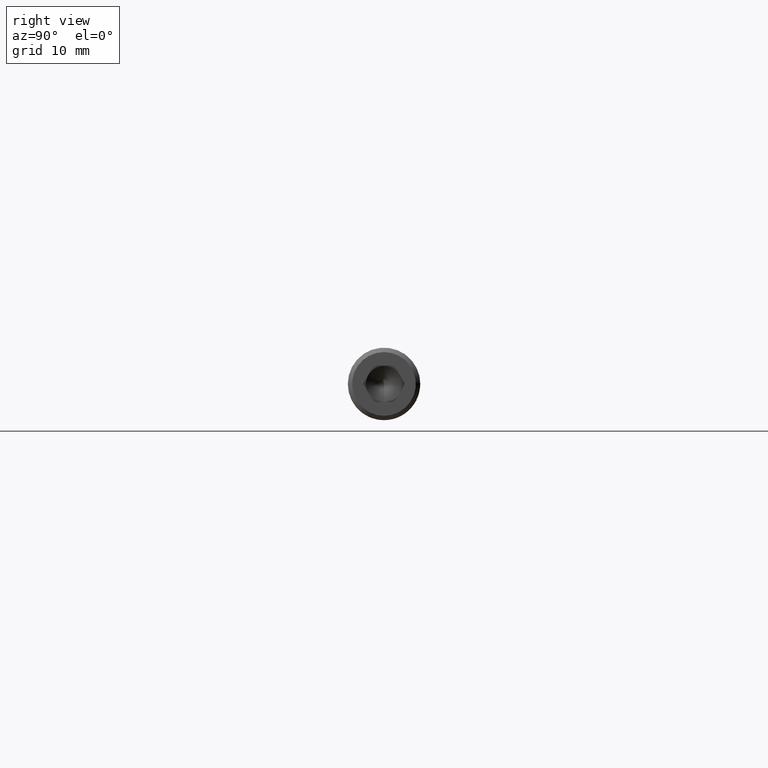
[diagram: clean part render]
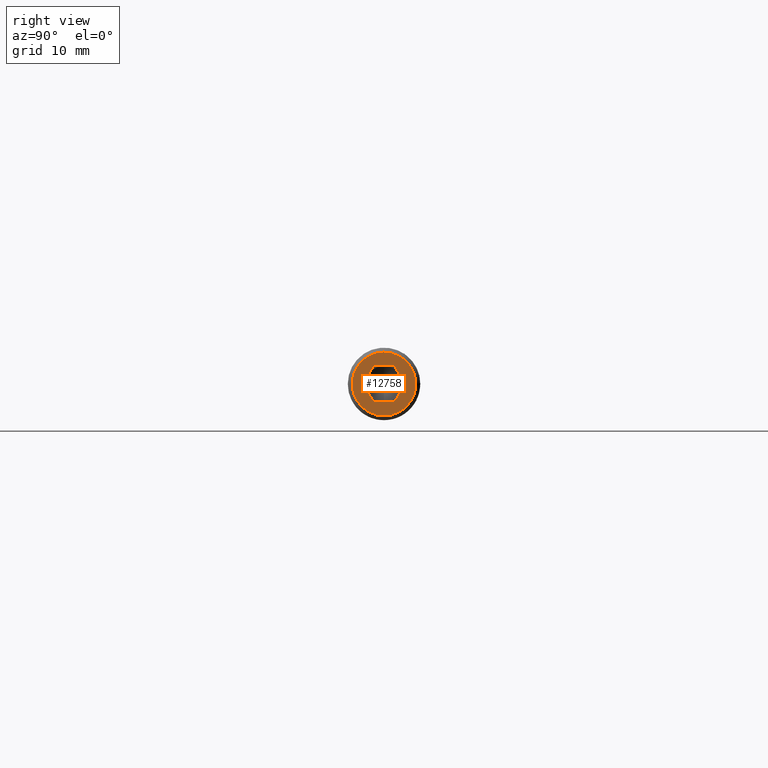
[diagram: same view with one face highlighted and labeled with its STEP entity id]
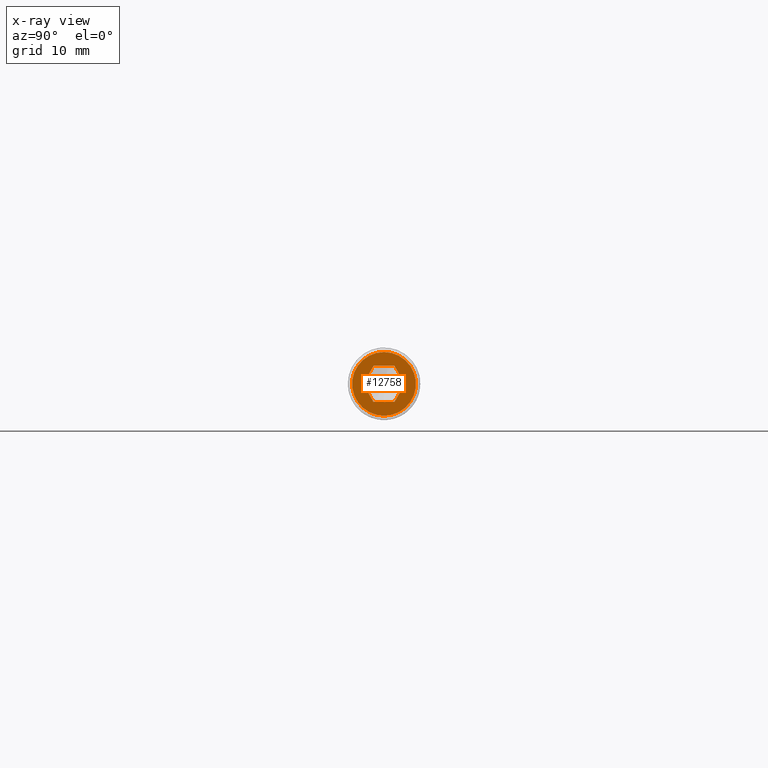
[diagram: x-ray of the same camera — body ghosted, the highlighted face saturated]
A machine part, right view. The second image highlights one B-rep face of the part: STEP entity #12758.
The next image is the same camera in x-ray: the body ghosted, the highlighted face saturated — about 0% of this face is hidden behind the body in this view.
In plain terms, the highlighted planar face has unit normal (1, 0, 0).
Its self-contained STEP definition (entity closure, byte-faithful):
#14 = ORIENTED_EDGE ( 'NONE', *, *, #9530, .F. ) ;
#299 = CARTESIAN_POINT ( 'NONE',  ( 100.0000000000000000, 2.886751345948125100, -6.345340530042170500E-016 ) ) ;
#1620 = VERTEX_POINT ( 'NONE', #7091 ) ;
#1689 = CARTESIAN_POINT ( 'NONE',  ( 100.0000000000000000, -1.443375672974068500, 2.500000000000000400 ) ) ;
#1742 = VERTEX_POINT ( 'NONE', #14264 ) ;
#1823 = CARTESIAN_POINT ( 'NONE',  ( 100.0000000000000000, -2.886751345948133500, -4.766870681724039000E-018 ) ) ;
#1846 = VERTEX_POINT ( 'NONE', #15651 ) ;
#1944 = LINE ( 'NONE', #13593, #11686 ) ;
#2323 = ORIENTED_EDGE ( 'NONE', *, *, #5334, .F. ) ;
#2417 = FACE_OUTER_BOUND ( 'NONE', #17806, .T. ) ;
#2558 = PLANE ( 'NONE',  #16360 ) ;
#2569 = EDGE_CURVE ( 'NONE', #3542, #1742, #5134, .T. ) ;
#2818 = CARTESIAN_POINT ( 'NONE',  ( 100.0000000000000000, 1.443375672974060800, 2.500000000000000400 ) ) ;
#3155 = DIRECTION ( 'NONE',  ( 0.0000000000000000000, 0.4999999999999997200, -0.8660254037844388200 ) ) ;
#3542 = VERTEX_POINT ( 'NONE', #299 ) ;
#3554 = LINE ( 'NONE', #13138, #9598 ) ;
#4256 = CARTESIAN_POINT ( 'NONE',  ( 100.0000000000000000, 2.886751345948125100, -6.345340530042170500E-016 ) ) ;
#4996 = FACE_BOUND ( 'NONE', #9342, .T. ) ;
#5086 = VECTOR ( 'NONE', #7654, 1000.000000000000000 ) ;
#5134 = LINE ( 'NONE', #4256, #8369 ) ;
#5238 = DIRECTION ( 'NONE',  ( 0.0000000000000000000, -1.000000000000000000, 0.0000000000000000000 ) ) ;
#5334 = EDGE_CURVE ( 'NONE', #1742, #7187, #14456, .T. ) ;
#5452 = ORIENTED_EDGE ( 'NONE', *, *, #11935, .T. ) ;
#5753 = VECTOR ( 'NONE', #5238, 1000.000000000000000 ) ;
#6788 = ORIENTED_EDGE ( 'NONE', *, *, #14429, .F. ) ;
#7091 = CARTESIAN_POINT ( 'NONE',  ( 100.0000000000000000, 1.443375672974062100, -2.499999999999999600 ) ) ;
#7187 = VERTEX_POINT ( 'NONE', #1689 ) ;
#7231 = EDGE_CURVE ( 'NONE', #7187, #8072, #3554, .T. ) ;
#7654 = DIRECTION ( 'NONE',  ( 0.0000000000000000000, 0.4999999999999997200, 0.8660254037844388200 ) ) ;
#7988 = DIRECTION ( 'NONE',  ( 0.0000000000000000000, 1.000000000000000000, -1.502314598737157300E-016 ) ) ;
#8072 = VERTEX_POINT ( 'NONE', #13471 ) ;
#8369 = VECTOR ( 'NONE', #12508, 1000.000000000000100 ) ;
#8450 = ORIENTED_EDGE ( 'NONE', *, *, #7231, .F. ) ;
#8769 = LINE ( 'NONE', #14348, #5086 ) ;
#8940 = DIRECTION ( 'NONE',  ( 0.0000000000000000000, -0.5000000000000001100, -0.8660254037844384900 ) ) ;
#9342 = EDGE_LOOP ( 'NONE', ( #8450, #2323, #9970, #11864, #6788, #14 ) ) ;
#9530 = EDGE_CURVE ( 'NONE', #8072, #11280, #15717, .T. ) ;
#9598 = VECTOR ( 'NONE', #8940, 1000.000000000000200 ) ;
#9970 = ORIENTED_EDGE ( 'NONE', *, *, #2569, .F. ) ;
#10779 = DIRECTION ( 'NONE',  ( 0.0000000000000000000, 0.0000000000000000000, -1.000000000000000000 ) ) ;
#11280 = VERTEX_POINT ( 'NONE', #13951 ) ;
#11686 = VECTOR ( 'NONE', #7988, 1000.000000000000000 ) ;
#11864 = ORIENTED_EDGE ( 'NONE', *, *, #16117, .F. ) ;
#11935 = EDGE_CURVE ( 'NONE', #1846, #1846, #12382, .T. ) ;
#12299 = CARTESIAN_POINT ( 'NONE',  ( 100.0000000000000000, 0.0000000000000000000, 0.0000000000000000000 ) ) ;
#12382 = CIRCLE ( 'NONE', #17403, 4.399999999999996800 ) ;
#12393 = CARTESIAN_POINT ( 'NONE',  ( 100.0000000000000000, 0.0000000000000000000, 0.0000000000000000000 ) ) ;
#12508 = DIRECTION ( 'NONE',  ( 0.0000000000000000000, -0.4999999999999997800, 0.8660254037844387100 ) ) ;
#12758 = ADVANCED_FACE ( 'NONE', ( #4996, #2417 ), #2558, .T. ) ;
#13138 = CARTESIAN_POINT ( 'NONE',  ( 100.0000000000000000, -1.443375672974068500, 2.500000000000000400 ) ) ;
#13471 = CARTESIAN_POINT ( 'NONE',  ( 100.0000000000000000, -2.886751345948133500, -2.168404344971008900E-016 ) ) ;
#13593 = CARTESIAN_POINT ( 'NONE',  ( 100.0000000000000000, -1.443375672974070800, -2.499999999999999100 ) ) ;
#13870 = DIRECTION ( 'NONE',  ( 1.000000000000000000, 0.0000000000000000000, 0.0000000000000000000 ) ) ;
#13951 = CARTESIAN_POINT ( 'NONE',  ( 100.0000000000000000, -1.443375672974070800, -2.499999999999999100 ) ) ;
#14264 = CARTESIAN_POINT ( 'NONE',  ( 100.0000000000000000, 1.443375672974060800, 2.500000000000000400 ) ) ;
#14348 = CARTESIAN_POINT ( 'NONE',  ( 100.0000000000000000, 1.443375672974062100, -2.499999999999999600 ) ) ;
#14429 = EDGE_CURVE ( 'NONE', #11280, #1620, #1944, .T. ) ;
#14456 = LINE ( 'NONE', #2818, #5753 ) ;
#15263 = DIRECTION ( 'NONE',  ( 0.0000000000000000000, 0.0000000000000000000, -1.000000000000000000 ) ) ;
#15270 = VECTOR ( 'NONE', #3155, 1000.000000000000000 ) ;
#15651 = CARTESIAN_POINT ( 'NONE',  ( 100.0000000000000000, 0.0000000000000000000, -4.399999999999996800 ) ) ;
#15717 = LINE ( 'NONE', #1823, #15270 ) ;
#16117 = EDGE_CURVE ( 'NONE', #1620, #3542, #8769, .T. ) ;
#16348 = DIRECTION ( 'NONE',  ( 1.000000000000000000, 0.0000000000000000000, 0.0000000000000000000 ) ) ;
#16360 = AXIS2_PLACEMENT_3D ( 'NONE', #12299, #16348, #10779 ) ;
#17403 = AXIS2_PLACEMENT_3D ( 'NONE', #12393, #13870, #15263 ) ;
#17806 = EDGE_LOOP ( 'NONE', ( #5452 ) ) ;